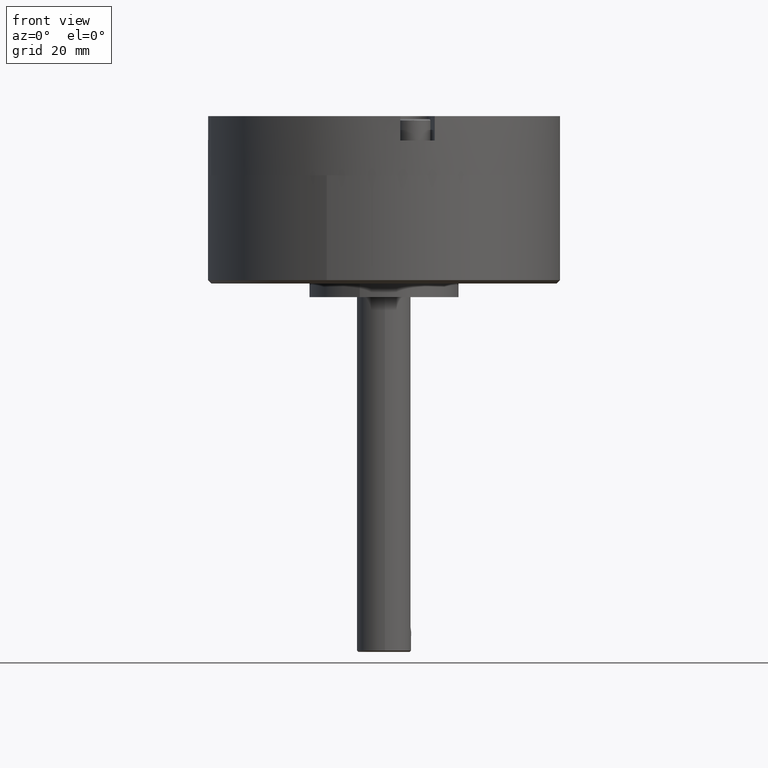
[diagram: clean part render]
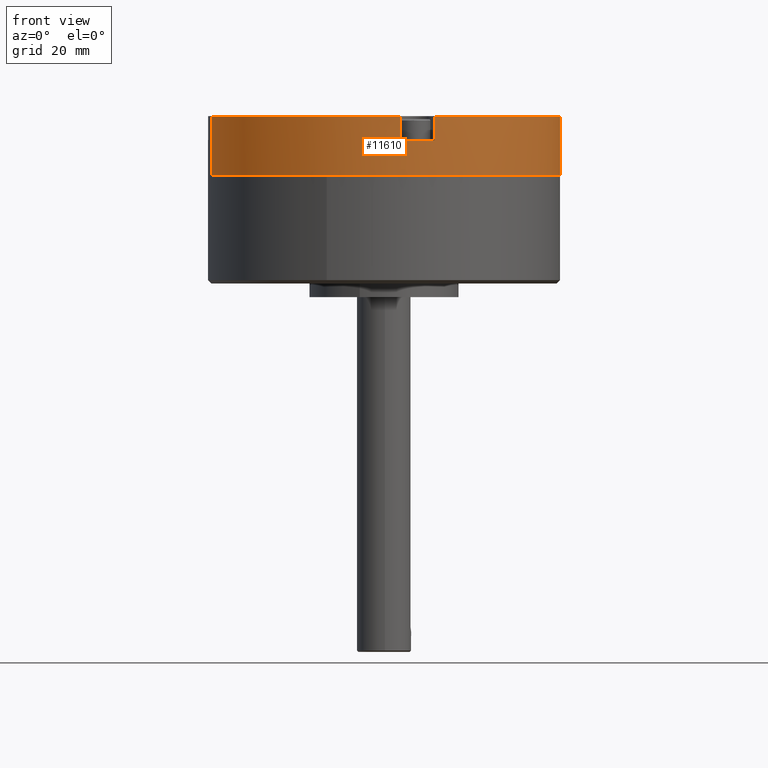
[diagram: same view with one face highlighted and labeled with its STEP entity id]
A machine part, front view. The second image highlights one B-rep face of the part: STEP entity #11610.
In plain terms, the highlighted cylindrical surface (partial cylindrical patch) has radius 41.275 mm, axis along (-0, 0, 1).
Its self-contained STEP definition (entity closure, byte-faithful):
#1004 = CARTESIAN_POINT ( 'NONE',  ( 1.625000000000000200, 0.0000000000000000000, 0.5450000000000000400 ) ) ;
#1013 = DIRECTION ( 'NONE',  ( 0.0000000000000000000, 0.0000000000000000000, 1.000000000000000000 ) ) ;
#1014 = VECTOR ( 'NONE', #1013, 39.37007874015748100 ) ;
#1015 = CARTESIAN_POINT ( 'NONE',  ( -1.625000000000000200, 1.990051048614449400E-016, 0.0000000000000000000 ) ) ;
#1016 = CARTESIAN_POINT ( 'NONE',  ( -1.625000000000000200, 1.990051048614449400E-016, 0.5450000000000000400 ) ) ;
#1020 = CARTESIAN_POINT ( 'NONE',  ( -1.625000000000000200, 1.990051048614449400E-016, 0.0000000000000000000 ) ) ;
#1028 = LINE ( 'NONE', #1015, #1014 ) ;
#1114 = DIRECTION ( 'NONE',  ( 0.0000000000000000000, 0.0000000000000000000, 1.000000000000000000 ) ) ;
#1115 = VECTOR ( 'NONE', #1114, 39.37007874015748100 ) ;
#1123 = CARTESIAN_POINT ( 'NONE',  ( 1.625000000000000200, 0.0000000000000000000, 0.0000000000000000000 ) ) ;
#1124 = LINE ( 'NONE', #1123, #1115 ) ;
#1268 = CARTESIAN_POINT ( 'NONE',  ( 0.0000000000000000000, 0.0000000000000000000, 0.0000000000000000000 ) ) ;
#1269 = AXIS2_PLACEMENT_3D ( 'NONE', #1268, #1316, #1315 ) ;
#1294 = CYLINDRICAL_SURFACE ( 'NONE', #1295, 1.625000000000000200 ) ;
#1295 = AXIS2_PLACEMENT_3D ( 'NONE', #1350, #1301, #1346 ) ;
#1296 = DIRECTION ( 'NONE',  ( 1.000000000000000000, 0.0000000000000000000, 0.0000000000000000000 ) ) ;
#1297 = DIRECTION ( 'NONE',  ( 0.0000000000000000000, 0.0000000000000000000, 1.000000000000000000 ) ) ;
#1298 = AXIS2_PLACEMENT_3D ( 'NONE', #1307, #1297, #1296 ) ;
#1301 = DIRECTION ( 'NONE',  ( 0.0000000000000000000, 0.0000000000000000000, 1.000000000000000000 ) ) ;
#1302 = FACE_OUTER_BOUND ( 'NONE', #11605, .T. ) ;
#1303 = DIRECTION ( 'NONE',  ( -0.0000000000000000000, -0.0000000000000000000, 1.000000000000000000 ) ) ;
#1304 = VECTOR ( 'NONE', #1303, 39.37007874015748100 ) ;
#1305 = CARTESIAN_POINT ( 'NONE',  ( -0.1624999999999997000, -1.616854585298257700, 0.3200000000000000600 ) ) ;
#1306 = LINE ( 'NONE', #1305, #1304 ) ;
#1307 = CARTESIAN_POINT ( 'NONE',  ( 0.0000000000000000000, 0.0000000000000000000, 0.5450000000000000400 ) ) ;
#1311 = CIRCLE ( 'NONE', #1298, 1.625000000000000200 ) ;
#1315 = DIRECTION ( 'NONE',  ( 1.000000000000000000, 0.0000000000000000000, 0.0000000000000000000 ) ) ;
#1316 = DIRECTION ( 'NONE',  ( 0.0000000000000000000, 0.0000000000000000000, 1.000000000000000000 ) ) ;
#1318 = CIRCLE ( 'NONE', #1269, 1.625000000000000200 ) ;
#1326 = DIRECTION ( 'NONE',  ( 1.000000000000000000, 0.0000000000000000000, 0.0000000000000000000 ) ) ;
#1327 = DIRECTION ( 'NONE',  ( 0.0000000000000000000, 0.0000000000000000000, 1.000000000000000000 ) ) ;
#1328 = AXIS2_PLACEMENT_3D ( 'NONE', #1337, #1327, #1326 ) ;
#1335 = CIRCLE ( 'NONE', #1328, 1.625000000000000200 ) ;
#1336 = CARTESIAN_POINT ( 'NONE',  ( 0.1625000000000008700, -1.616854585298257700, 0.5450000000000000400 ) ) ;
#1337 = CARTESIAN_POINT ( 'NONE',  ( 0.0000000000000000000, 0.0000000000000000000, 0.5450000000000000400 ) ) ;
#1346 = DIRECTION ( 'NONE',  ( 1.000000000000000000, 0.0000000000000000000, 0.0000000000000000000 ) ) ;
#1350 = CARTESIAN_POINT ( 'NONE',  ( 0.0000000000000000000, 0.0000000000000000000, 0.0000000000000000000 ) ) ;
#1421 = DIRECTION ( 'NONE',  ( -0.0000000000000000000, -0.0000000000000000000, 1.000000000000000000 ) ) ;
#1422 = VECTOR ( 'NONE', #1421, 39.37007874015748100 ) ;
#1423 = CARTESIAN_POINT ( 'NONE',  ( 0.1625000000000008700, -1.616854585298257700, 0.3200000000000000600 ) ) ;
#1424 = LINE ( 'NONE', #1423, #1422 ) ;
#1425 = CARTESIAN_POINT ( 'NONE',  ( -0.1624999999999997000, -1.616854585298257700, 0.5450000000000000400 ) ) ;
#1426 = CARTESIAN_POINT ( 'NONE',  ( 0.1625000000000008700, -1.616854585298257700, 0.3200000000000000600 ) ) ;
#1427 = CIRCLE ( 'NONE', #1432, 1.625000000000000200 ) ;
#1432 = AXIS2_PLACEMENT_3D ( 'NONE', #1481, #1480, #1479 ) ;
#1436 = CARTESIAN_POINT ( 'NONE',  ( -0.1624999999999997000, -1.616854585298257700, 0.3200000000000000600 ) ) ;
#1479 = DIRECTION ( 'NONE',  ( 1.000000000000000000, 0.0000000000000000000, 0.0000000000000000000 ) ) ;
#1480 = DIRECTION ( 'NONE',  ( 0.0000000000000000000, 0.0000000000000000000, 1.000000000000000000 ) ) ;
#1481 = CARTESIAN_POINT ( 'NONE',  ( 0.0000000000000000000, 0.0000000000000000000, 0.3200000000000000600 ) ) ;
#8242 = CARTESIAN_POINT ( 'NONE',  ( 1.625000000000000200, 0.0000000000000000000, 0.0000000000000000000 ) ) ;
#11435 = VERTEX_POINT ( 'NONE', #1004 ) ;
#11462 = VERTEX_POINT ( 'NONE', #1020 ) ;
#11464 = EDGE_CURVE ( 'NONE', #11462, #11465, #1028, .T. ) ;
#11465 = VERTEX_POINT ( 'NONE', #1016 ) ;
#11503 = EDGE_CURVE ( 'NONE', #15892, #11435, #1124, .T. ) ;
#11587 = EDGE_CURVE ( 'NONE', #11462, #15892, #1318, .T. ) ;
#11596 = ORIENTED_EDGE ( 'NONE', *, *, #11599, .F. ) ;
#11597 = EDGE_CURVE ( 'NONE', #11676, #11679, #1306, .T. ) ;
#11599 = EDGE_CURVE ( 'NONE', #11465, #11679, #1311, .T. ) ;
#11604 = ORIENTED_EDGE ( 'NONE', *, *, #11597, .T. ) ;
#11605 = EDGE_LOOP ( 'NONE', ( #11621, #11612, #11611, #11614, #11613, #11609, #11604, #11596 ) ) ;
#11609 = ORIENTED_EDGE ( 'NONE', *, *, #11680, .F. ) ;
#11610 = ADVANCED_FACE ( 'NONE', ( #1302 ), #1294, .T. ) ;
#11611 = ORIENTED_EDGE ( 'NONE', *, *, #11503, .T. ) ;
#11612 = ORIENTED_EDGE ( 'NONE', *, *, #11587, .T. ) ;
#11613 = ORIENTED_EDGE ( 'NONE', *, *, #11677, .F. ) ;
#11614 = ORIENTED_EDGE ( 'NONE', *, *, #11622, .F. ) ;
#11620 = VERTEX_POINT ( 'NONE', #1336 ) ;
#11621 = ORIENTED_EDGE ( 'NONE', *, *, #11464, .F. ) ;
#11622 = EDGE_CURVE ( 'NONE', #11620, #11435, #1335, .T. ) ;
#11676 = VERTEX_POINT ( 'NONE', #1436 ) ;
#11677 = EDGE_CURVE ( 'NONE', #11678, #11620, #1424, .T. ) ;
#11678 = VERTEX_POINT ( 'NONE', #1426 ) ;
#11679 = VERTEX_POINT ( 'NONE', #1425 ) ;
#11680 = EDGE_CURVE ( 'NONE', #11676, #11678, #1427, .T. ) ;
#15892 = VERTEX_POINT ( 'NONE', #8242 ) ;